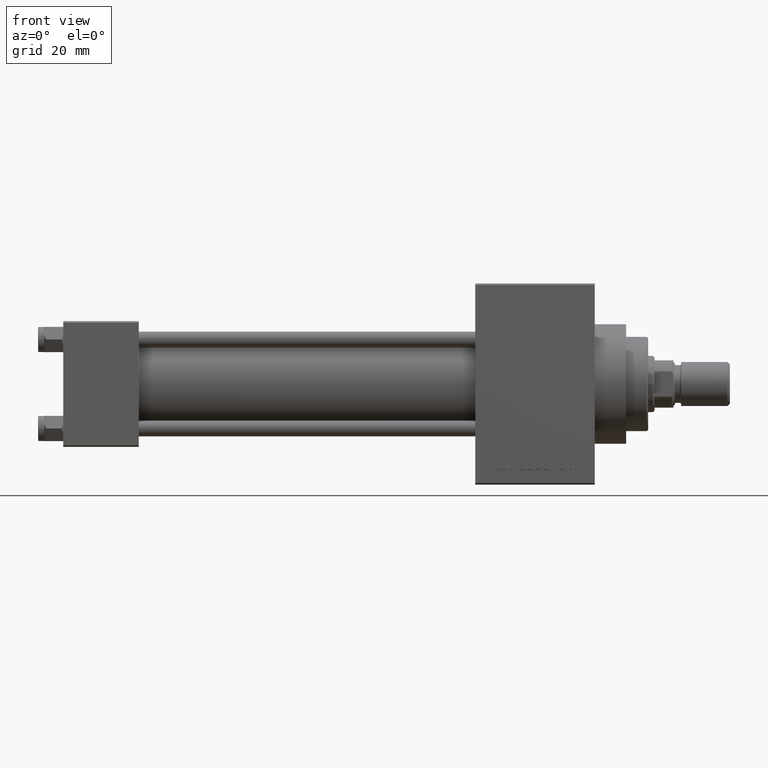
[diagram: clean part render]
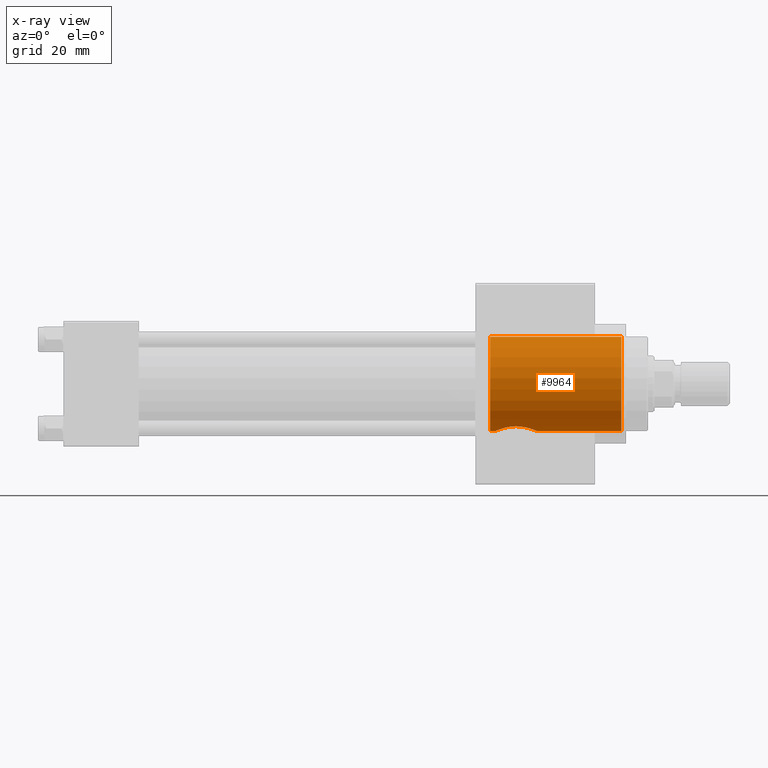
[diagram: x-ray — body ghosted, one internal face saturated and labeled with its STEP entity id]
A machine part, front view, then the same camera in x-ray: the body is ghosted and one INTERNAL B-rep face — a face not visible from any outside direction — is saturated and labeled: STEP entity #9964.
In plain terms, the highlighted cylindrical surface (partial cylindrical patch) has radius 15 mm, axis along (1, 0, 0).
Its self-contained STEP definition (entity closure, byte-faithful):
#14 = CARTESIAN_POINT ( 'NONE',  ( 135.7400000000000375, 0.000000000000000000, -15.00000000000000000 ) ) ;
#113 = CARTESIAN_POINT ( 'NONE',  ( 177.4999999999999716, 0.000000000000000000, -15.00000000000000000 ) ) ;
#1182 = CARTESIAN_POINT ( 'NONE',  ( 149.9873116215155449, -2.737739955950561299, -14.74943118176231494 ) ) ;
#1900 = CARTESIAN_POINT ( 'NONE',  ( 137.4648657042213529, -0.8805243766858766863, -14.98017372138866321 ) ) ;
#2502 = CIRCLE ( 'NONE', #42457, 15.00000000000000000 ) ;
#2615 = CARTESIAN_POINT ( 'NONE',  ( 138.0133274336805300, -2.739174705121723896, -14.74917075335449290 ) ) ;
#4096 = CARTESIAN_POINT ( 'NONE',  ( 135.7400000000000375, 0.000000000000000000, -15.00000000000000000 ) ) ;
#4192 = VERTEX_POINT ( 'NONE', #45849 ) ;
#5517 = CARTESIAN_POINT ( 'NONE',  ( 145.7289618843938968, -6.363607446194719408, -13.58357725995888643 ) ) ;
#5746 = CARTESIAN_POINT ( 'NONE',  ( 149.3417132546429968, -3.848088360131228569, -14.49915132225420855 ) ) ;
#6009 = VECTOR ( 'NONE', #7931, 1000.000000000000000 ) ;
#6226 = CARTESIAN_POINT ( 'NONE',  ( 143.5689408311527018, -6.580190746694159820, -13.47965466109860522 ) ) ;
#6454 = CARTESIAN_POINT ( 'NONE',  ( 137.6362535870324564, -1.728014766500466592, -14.90620316739570939 ) ) ;
#7189 = CARTESIAN_POINT ( 'NONE',  ( 135.7400000000000375, 1.836970198721029589E-15, 15.00000000000000000 ) ) ;
#7582 = CARTESIAN_POINT ( 'NONE',  ( 135.7400000000000375, 0.000000000000000000, -15.00000000000000000 ) ) ;
#7931 = DIRECTION ( 'NONE',  ( 1.000000000000000000, -0.000000000000000000, -0.000000000000000000 ) ) ;
#8392 = CARTESIAN_POINT ( 'NONE',  ( 135.7400000000000375, 0.000000000000000000, 0.000000000000000000 ) ) ;
#8415 = CARTESIAN_POINT ( 'NONE',  ( 150.2374588801659456, -2.139483301269047288, -14.85215042380712092 ) ) ;
#8975 = EDGE_CURVE ( 'NONE', #4192, #16038, #26139, .T. ) ;
#9373 = CARTESIAN_POINT ( 'NONE',  ( 140.6876178641565502, -5.701379665288317966, -13.87656728217249125 ) ) ;
#9605 = CARTESIAN_POINT ( 'NONE',  ( 147.3132530144320356, -5.700817728997733091, -13.87679021385153888 ) ) ;
#9964 = ADVANCED_FACE ( 'NONE', ( #19443 ), #23293, .F. ) ;
#10488 = LINE ( 'NONE', #7582, #45155 ) ;
#11753 = DIRECTION ( 'NONE',  ( 1.000000000000000000, -0.000000000000000000, -0.000000000000000000 ) ) ;
#12467 = DIRECTION ( 'NONE',  ( 0.000000000000000000, 0.000000000000000000, -1.000000000000000000 ) ) ;
#12632 = ORIENTED_EDGE ( 'NONE', *, *, #46448, .T. ) ;
#13435 = CARTESIAN_POINT ( 'NONE',  ( 138.3105094269598965, -3.312402565187733128, -14.63096604029539449 ) ) ;
#15857 = CARTESIAN_POINT ( 'NONE',  ( 150.5800000000000409, -0.2169316461638564342, -15.00000000000000000 ) ) ;
#16038 = VERTEX_POINT ( 'NONE', #46524 ) ;
#16777 = VERTEX_POINT ( 'NONE', #29574 ) ;
#16801 = CARTESIAN_POINT ( 'NONE',  ( 148.0189860575794683, -5.227305174359007545, -14.06200234790978421 ) ) ;
#17372 = ORIENTED_EDGE ( 'NONE', *, *, #40842, .F. ) ;
#17681 = CIRCLE ( 'NONE', #43777, 15.00000000000000000 ) ;
#19443 = FACE_OUTER_BOUND ( 'NONE', #34842, .T. ) ;
#19464 = CARTESIAN_POINT ( 'NONE',  ( 150.4930741586604199, -1.087954086145058508, -14.96202221307932767 ) ) ;
#20181 = CARTESIAN_POINT ( 'NONE',  ( 137.4200000000000159, 0.000000000000000000, -15.00000000000000000 ) ) ;
#20550 = DIRECTION ( 'NONE',  ( 0.000000000000000000, 0.000000000000000000, -1.000000000000000000 ) ) ;
#20656 = CARTESIAN_POINT ( 'NONE',  ( 141.0705943742913746, -5.907585361799359447, -13.78887769018724896 ) ) ;
#20899 = CARTESIAN_POINT ( 'NONE',  ( 138.1070580712365370, -2.935225572046712195, -14.71127556900971811 ) ) ;
#21133 = CARTESIAN_POINT ( 'NONE',  ( 145.0907739839685746, -6.492589186729399664, -13.52215047168899176 ) ) ;
#21294 = DIRECTION ( 'NONE',  ( 1.000000000000000000, -0.000000000000000000, -0.000000000000000000 ) ) ;
#21851 = DIRECTION ( 'NONE',  ( 1.000000000000000000, -0.000000000000000000, -0.000000000000000000 ) ) ;
#22030 = AXIS2_PLACEMENT_3D ( 'NONE', #8392, #11753, #12467 ) ;
#23293 = CYLINDRICAL_SURFACE ( 'NONE', #22030, 15.00000000000000000 ) ;
#23797 = CARTESIAN_POINT ( 'NONE',  ( 150.5259065783089625, -0.8699806972760342205, -14.97633719546783837 ) ) ;
#24036 = CARTESIAN_POINT ( 'NONE',  ( 146.9301300350283555, -5.907156111486604466, -13.78905776751299328 ) ) ;
#24269 = CARTESIAN_POINT ( 'NONE',  ( 144.8726397794943352, -6.525547563966284770, -13.50621393548088278 ) ) ;
#24508 = CARTESIAN_POINT ( 'NONE',  ( 142.2759116826974832, -6.365206900525163469, -13.58282947431845500 ) ) ;
#24746 = CARTESIAN_POINT ( 'NONE',  ( 149.2146596379365349, -4.018599059668316542, -14.45268843803246206 ) ) ;
#25136 = EDGE_CURVE ( 'NONE', #37849, #33328, #17681, .T. ) ;
#25473 = LINE ( 'NONE', #7189, #47528 ) ;
#26139 = B_SPLINE_CURVE_WITH_KNOTS ( 'NONE', 3,
 ( #42068, #15857, #38470, #23797, #19464, #34125, #8415, #1182, #30536, #33663, #41602, #5746, #24746, #31242, #28605, #43262, #16801, #9605, #24036, #46619, #5517, #21133, #24269, #35793, #42311, #6226, #31487, #24508, #35557, #20656, #9373, #39409, #42540, #46376, #35074, #45902, #13435, #20899, #2615, #42774, #6454, #1900, #28120, #20181 ),
 .UNSPECIFIED., .F., .F.,
 ( 4, 2, 2, 2, 2, 2, 2, 2, 2, 2, 2, 2, 2, 2, 2, 2, 2, 2, 2, 2, 2, 4 ),
 ( 0.02084072481815275185, 0.02149133227047383965, 0.02214193972279492398, 0.02344315462743709957, 0.02409376207975818390, 0.02474436953207927170, 0.02539497698440035950, 0.02604558443672144730, 0.02734679934136356738, 0.02864801424600568747, 0.02994922915064780408, 0.03059983660296890229, 0.03125044405529000396, 0.03255165895993212405, 0.03385287386457423719, 0.03515408876921635728, 0.03645530367385847736, 0.03775651857850059745, 0.03840712603082165055, 0.03905773348314271060, 0.04035894838778482374, 0.04166016329242694383 ),
 .UNSPECIFIED. ) ;
#28120 = CARTESIAN_POINT ( 'NONE',  ( 137.4200000000000159, -0.4403606452338927890, -15.00000000000000000 ) ) ;
#28605 = CARTESIAN_POINT ( 'NONE',  ( 148.7990117092313653, -4.506815016703084709, -14.30782100257159328 ) ) ;
#29574 = CARTESIAN_POINT ( 'NONE',  ( 177.4999999999999716, 1.836970198721029589E-15, 15.00000000000000000 ) ) ;
#30536 = CARTESIAN_POINT ( 'NONE',  ( 149.8934836668074695, -2.934172982067080770, -14.71149136710529781 ) ) ;
#31242 = CARTESIAN_POINT ( 'NONE',  ( 148.9437061587972266, -4.347595077437862443, -14.35715008390740266 ) ) ;
#31487 = CARTESIAN_POINT ( 'NONE',  ( 143.1350046215166856, -6.537593013300424083, -13.50070342639052434 ) ) ;
#32355 = CARTESIAN_POINT ( 'NONE',  ( 135.7400000000000375, 0.000000000000000000, 0.000000000000000000 ) ) ;
#32966 = LINE ( 'NONE', #14, #6009 ) ;
#33328 = VERTEX_POINT ( 'NONE', #4096 ) ;
#33663 = CARTESIAN_POINT ( 'NONE',  ( 149.6896142827502274, -3.312221329130022873, -14.63101292460512859 ) ) ;
#34125 = CARTESIAN_POINT ( 'NONE',  ( 150.3641253325308753, -1.727232828987601110, -14.90636367285540231 ) ) ;
#34842 = EDGE_LOOP ( 'NONE', ( #45415, #12632, #45309, #47054, #44043, #17372 ) ) ;
#35074 = CARTESIAN_POINT ( 'NONE',  ( 138.7760979405067303, -4.023384065375202212, -14.45491362806344782 ) ) ;
#35272 = EDGE_CURVE ( 'NONE', #16777, #38635, #2502, .T. ) ;
#35557 = CARTESIAN_POINT ( 'NONE',  ( 141.8636428790546802, -6.238345964970665847, -13.64242472521743110 ) ) ;
#35793 = CARTESIAN_POINT ( 'NONE',  ( 144.4372230276197229, -6.569102466734814350, -13.48508356155434029 ) ) ;
#36197 = DIRECTION ( 'NONE',  ( 1.000000000000000000, 0.000000000000000000, 0.000000000000000000 ) ) ;
#37849 = VERTEX_POINT ( 'NONE', #41448 ) ;
#38470 = CARTESIAN_POINT ( 'NONE',  ( 150.5692996823796648, -0.4343095273374462106, -14.99529651058791835 ) ) ;
#38635 = VERTEX_POINT ( 'NONE', #113 ) ;
#39067 = CARTESIAN_POINT ( 'NONE',  ( 177.4999999999999716, 0.000000000000000000, 0.000000000000000000 ) ) ;
#39409 = CARTESIAN_POINT ( 'NONE',  ( 139.9806200292473477, -5.227063243574806783, -14.06210010887748574 ) ) ;
#40042 = DIRECTION ( 'NONE',  ( 0.000000000000000000, 0.000000000000000000, -1.000000000000000000 ) ) ;
#40842 = EDGE_CURVE ( 'NONE', #33328, #16038, #10488, .T. ) ;
#41448 = CARTESIAN_POINT ( 'NONE',  ( 135.7400000000000375, 1.836970198721029589E-15, 15.00000000000000000 ) ) ;
#41602 = CARTESIAN_POINT ( 'NONE',  ( 149.5791903802710863, -3.494899028998896817, -14.58831223514585318 ) ) ;
#42068 = CARTESIAN_POINT ( 'NONE',  ( 150.5800000000000125, 7.343386259844805303E-21, -15.00000000000000000 ) ) ;
#42209 = DIRECTION ( 'NONE',  ( 1.000000000000000000, 0.000000000000000000, 0.000000000000000000 ) ) ;
#42311 = CARTESIAN_POINT ( 'NONE',  ( 144.2198824759412332, -6.579903666791471650, -13.47979479617858978 ) ) ;
#42457 = AXIS2_PLACEMENT_3D ( 'NONE', #39067, #42209, #20550 ) ;
#42540 = CARTESIAN_POINT ( 'NONE',  ( 139.6528485656796477, -4.957982004203291382, -14.16049044040822658 ) ) ;
#42774 = CARTESIAN_POINT ( 'NONE',  ( 137.7625296978261247, -2.139642529840412255, -14.85215114896302424 ) ) ;
#43262 = CARTESIAN_POINT ( 'NONE',  ( 148.3460843867603955, -4.958823491881413581, -14.16017525746068095 ) ) ;
#43777 = AXIS2_PLACEMENT_3D ( 'NONE', #32355, #36197, #40042 ) ;
#44043 = ORIENTED_EDGE ( 'NONE', *, *, #8975, .T. ) ;
#45155 = VECTOR ( 'NONE', #21294, 1000.000000000000000 ) ;
#45205 = EDGE_CURVE ( 'NONE', #4192, #38635, #32966, .T. ) ;
#45309 = ORIENTED_EDGE ( 'NONE', *, *, #35272, .T. ) ;
#45415 = ORIENTED_EDGE ( 'NONE', *, *, #25136, .F. ) ;
#45849 = CARTESIAN_POINT ( 'NONE',  ( 150.5800000000000125, 7.343386259844805303E-21, -15.00000000000000000 ) ) ;
#45902 = CARTESIAN_POINT ( 'NONE',  ( 138.4206920616049388, -3.494683954914244328, -14.58835908827093775 ) ) ;
#46376 = CARTESIAN_POINT ( 'NONE',  ( 139.0476263716007281, -4.353539547500782092, -14.35784693034589310 ) ) ;
#46448 = EDGE_CURVE ( 'NONE', #37849, #16777, #25473, .T. ) ;
#46524 = CARTESIAN_POINT ( 'NONE',  ( 137.4200000000000159, 0.000000000000000000, -15.00000000000000000 ) ) ;
#46619 = CARTESIAN_POINT ( 'NONE',  ( 146.1389497965093085, -6.237391210727566637, -13.64285741058751000 ) ) ;
#47054 = ORIENTED_EDGE ( 'NONE', *, *, #45205, .F. ) ;
#47528 = VECTOR ( 'NONE', #21851, 1000.000000000000000 ) ;